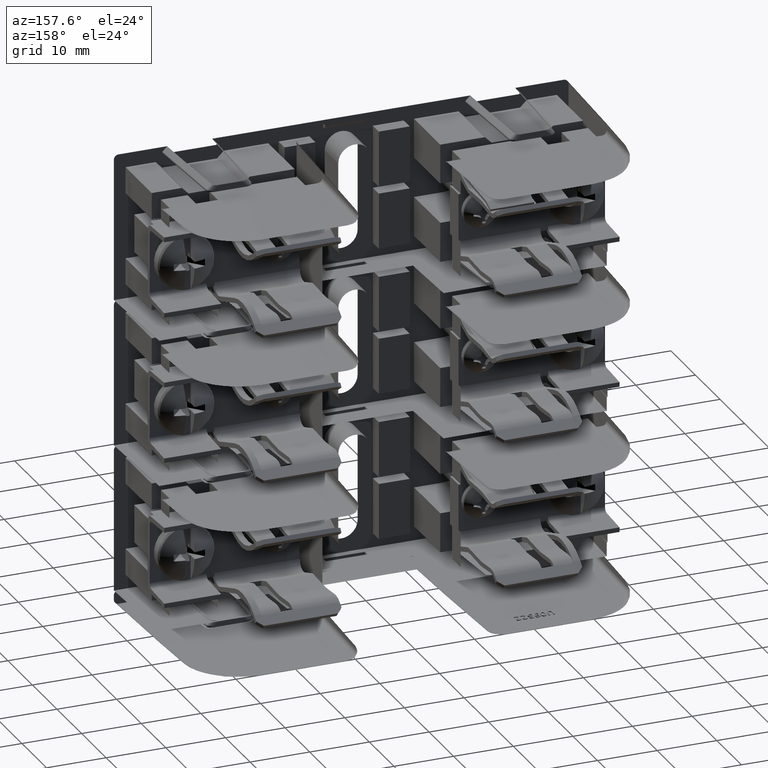
[diagram: clean part render]
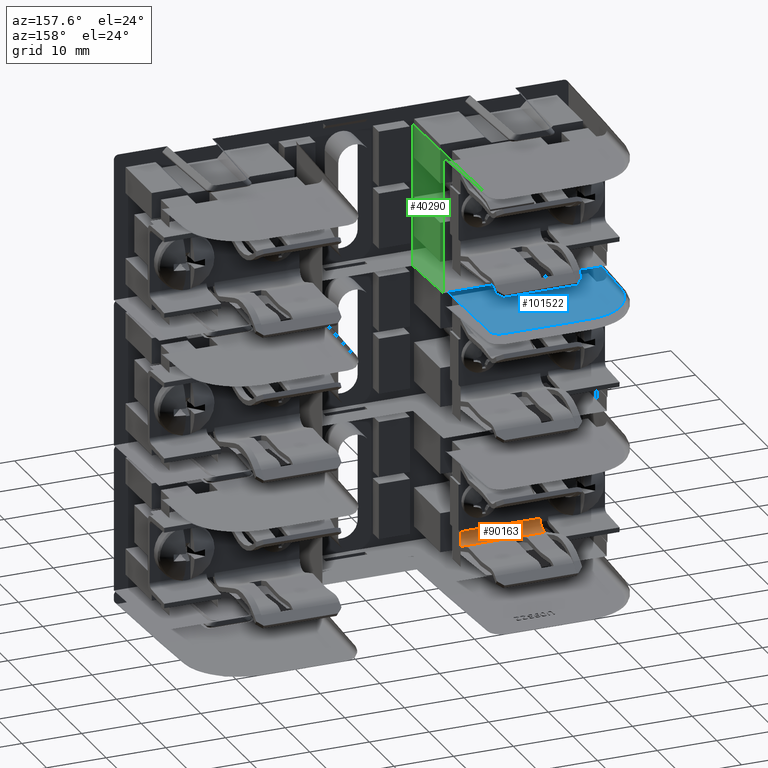
[diagram: same view with three faces highlighted in distinct colors, each labeled with its STEP entity id]
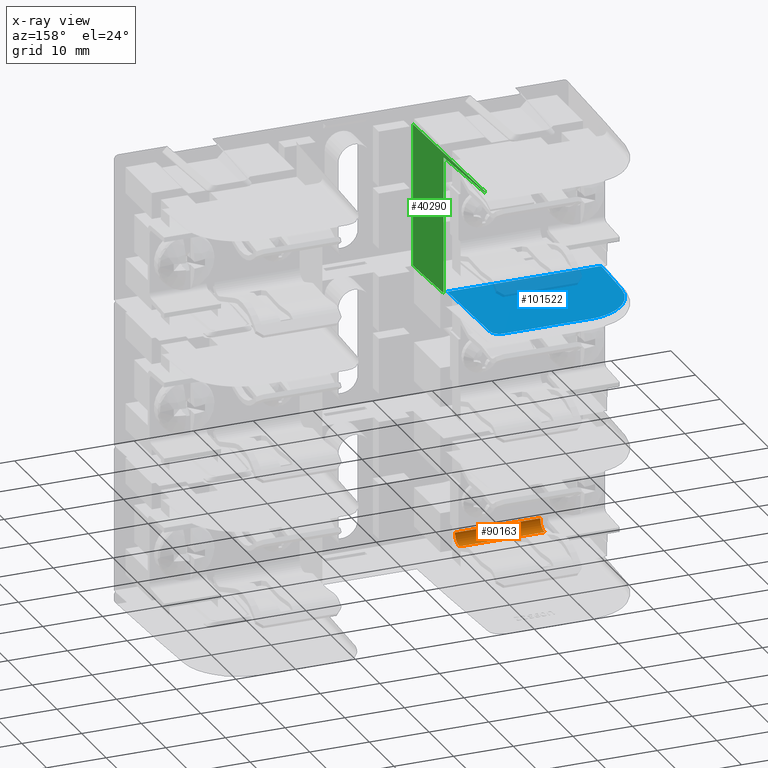
[diagram: x-ray of the same camera — body ghosted, the three highlighted faces saturated]
A machine part, auxiliary view with three faces highlighted in distinct colors.
The next image is the same camera in x-ray (body ghosted, the three faces saturated) — at least one of them is partly hidden behind the body in this view.
Their STEP definitions:

[orange] entity #90163 — the highlighted cylindrical surface (edge-blend (fillet) strip) has radius 1.5748 mm, axis along (-1, 0, -0).
#2271 = ORIENTED_EDGE ( 'NONE', *, *, #41923, .F. ) ;
#8782 = DIRECTION ( 'NONE',  ( -6.609309662090962000E-015, 0.0000000000000000000, 1.000000000000000000 ) ) ;
#12020 = CIRCLE ( 'NONE', #85103, 0.06199999999999997900 ) ;
#27789 = DIRECTION ( 'NONE',  ( 1.000000000000000000, -0.0000000000000000000, 6.982962677686265900E-015 ) ) ;
#31194 = LINE ( 'NONE', #77393, #83687 ) ;
#32605 = DIRECTION ( 'NONE',  ( -1.000000000000000000, -0.0000000000000000000, 0.0000000000000000000 ) ) ;
#32893 = CARTESIAN_POINT ( 'NONE',  ( -1.075499999999995500, 0.6410000000000001300, -0.6373778145455099000 ) ) ;
#40416 = VERTEX_POINT ( 'NONE', #81491 ) ;
#41923 = EDGE_CURVE ( 'NONE', #119208, #117816, #121256, .T. ) ;
#42957 = DIRECTION ( 'NONE',  ( -6.609309662090962000E-015, 0.0000000000000000000, 1.000000000000000000 ) ) ;
#51649 = CARTESIAN_POINT ( 'NONE',  ( -0.5124999999999982900, 0.5790000000000000700, -0.6373778145455059100 ) ) ;
#53444 = DIRECTION ( 'NONE',  ( -6.609309662090962000E-015, 0.0000000000000000000, 1.000000000000000000 ) ) ;
#55268 = CYLINDRICAL_SURFACE ( 'NONE', #116504, 0.06199999999999997900 ) ;
#57588 = EDGE_CURVE ( 'NONE', #117816, #40416, #31194, .T. ) ;
#60891 = CARTESIAN_POINT ( 'NONE',  ( -0.5124999999999969600, 0.5790000000000000700, -0.6373778145455059100 ) ) ;
#61779 = VECTOR ( 'NONE', #32605, 39.37007874015748100 ) ;
#63451 = CARTESIAN_POINT ( 'NONE',  ( -1.075499999999995500, 0.5790000000000000700, -0.6373778145455079000 ) ) ;
#64425 = EDGE_LOOP ( 'NONE', ( #2271, #93536, #69273, #74963 ) ) ;
#68024 = DIRECTION ( 'NONE',  ( -1.000000000000000000, 0.0000000000000000000, -6.982962677686266700E-015 ) ) ;
#69273 = ORIENTED_EDGE ( 'NONE', *, *, #90434, .F. ) ;
#70722 = FACE_OUTER_BOUND ( 'NONE', #64425, .T. ) ;
#72810 = DIRECTION ( 'NONE',  ( -1.000000000000000000, 0.0000000000000000000, -6.982962677686266700E-015 ) ) ;
#74963 = ORIENTED_EDGE ( 'NONE', *, *, #57588, .F. ) ;
#76790 = AXIS2_PLACEMENT_3D ( 'NONE', #32893, #101918, #42957 ) ;
#77393 = CARTESIAN_POINT ( 'NONE',  ( -0.5124999999999950700, 0.6622052488861912600, -0.6956387570342322800 ) ) ;
#81491 = CARTESIAN_POINT ( 'NONE',  ( -0.5124999999999951800, 0.6622052488861912600, -0.6956387570342322800 ) ) ;
#83687 = VECTOR ( 'NONE', #27789, 39.37007874015748100 ) ;
#85103 = AXIS2_PLACEMENT_3D ( 'NONE', #127107, #68024, #8782 ) ;
#90163 = ADVANCED_FACE ( 'NONE', ( #70722 ), #55268, .F. ) ;
#90434 = EDGE_CURVE ( 'NONE', #40416, #122871, #12020, .T. ) ;
#92236 = CARTESIAN_POINT ( 'NONE',  ( -0.5124999999999955100, 0.6410000000000001300, -0.6373778145455059100 ) ) ;
#93536 = ORIENTED_EDGE ( 'NONE', *, *, #116653, .F. ) ;
#101918 = DIRECTION ( 'NONE',  ( 1.000000000000000000, -0.0000000000000000000, 6.982962677686266700E-015 ) ) ;
#106459 = CARTESIAN_POINT ( 'NONE',  ( -1.075499999999995000, 0.6622052488861912600, -0.6956387570342362800 ) ) ;
#114207 = LINE ( 'NONE', #51649, #61779 ) ;
#116504 = AXIS2_PLACEMENT_3D ( 'NONE', #92236, #72810, #53444 ) ;
#116653 = EDGE_CURVE ( 'NONE', #122871, #119208, #114207, .T. ) ;
#117816 = VERTEX_POINT ( 'NONE', #106459 ) ;
#119208 = VERTEX_POINT ( 'NONE', #63451 ) ;
#121256 = CIRCLE ( 'NONE', #76790, 0.06199999999999997900 ) ;
#122871 = VERTEX_POINT ( 'NONE', #60891 ) ;
#127107 = CARTESIAN_POINT ( 'NONE',  ( -0.5124999999999955100, 0.6410000000000001300, -0.6373778145455059100 ) ) ;

[blue] entity #101522 — the highlighted planar face has unit normal (0, -0.0175, -0.9998).
#847 = FACE_OUTER_BOUND ( 'NONE', #7928, .T. ) ;
#2964 = DIRECTION ( 'NONE',  ( 0.03489418781261441300, 0.9992388003036509800, -0.01744177813809427700 ) ) ;
#5791 = CARTESIAN_POINT ( 'NONE',  ( -0.4770370497526416600, 1.329928703366162900, 1.004736530725754300 ) ) ;
#6498 = CARTESIAN_POINT ( 'NONE',  ( -1.426369132407067300, 1.069399307966164600, 1.009284088238170800 ) ) ;
#6976 = CARTESIAN_POINT ( 'NONE',  ( -1.419538821831554800, 1.097143967803480400, 1.008799803399299100 ) ) ;
#7416 = CARTESIAN_POINT ( 'NONE',  ( -1.345570078080138500, 1.228911172557068100, 1.006499798284915300 ) ) ;
#7828 = CARTESIAN_POINT ( 'NONE',  ( -1.215392852275294100, 1.317858444185215200, 1.004947217883458200 ) ) ;
#7928 = EDGE_LOOP ( 'NONE', ( #77928, #42248, #101369, #55200, #37844, #111636, #80241, #46593 ) ) ;
#10580 = LINE ( 'NONE', #52302, #86251 ) ;
#15243 = CARTESIAN_POINT ( 'NONE',  ( -1.433384370331605400, 1.019862342538113000, 1.010148759186064100 ) ) ;
#15645 = EDGE_CURVE ( 'NONE', #30416, #47337, #62520, .T. ) ;
#15726 = EDGE_CURVE ( 'NONE', #115858, #52680, #86348, .T. ) ;
#15784 = CARTESIAN_POINT ( 'NONE',  ( -0.4640484300996439700, 1.316548052078306400, 1.004970090862765900 ) ) ;
#17022 = CARTESIAN_POINT ( 'NONE',  ( -1.409885816706534700, 1.124007694935555300, 1.008330895297994600 ) ) ;
#17425 = CARTESIAN_POINT ( 'NONE',  ( -1.307558408796290800, 1.264414795062130300, 1.005880080248902700 ) ) ;
#17862 = CARTESIAN_POINT ( 'NONE',  ( -1.188477488580055500, 1.327449206474217200, 1.004779810504993000 ) ) ;
#18472 = VECTOR ( 'NONE', #41627, 39.37007874015748100 ) ;
#19310 = VECTOR ( 'NONE', #62482, 39.37007874015748100 ) ;
#21129 = VERTEX_POINT ( 'NONE', #51724 ) ;
#24507 = EDGE_CURVE ( 'NONE', #121687, #115858, #32100, .T. ) ;
#25602 = CARTESIAN_POINT ( 'NONE',  ( -1.432154914113540600, 1.035247390072984200, 1.009880212182419300 ) ) ;
#25713 = CARTESIAN_POINT ( 'NONE',  ( -0.4588552060648084500, 1.307694200358158000, 1.005124635419405700 ) ) ;
#26949 = CARTESIAN_POINT ( 'NONE',  ( -1.407302127785931200, 1.130314764404684300, 1.008220804990904300 ) ) ;
#27372 = CARTESIAN_POINT ( 'NONE',  ( -1.284271361124348800, 1.281418309438405700, 1.005583282801456800 ) ) ;
#27781 = CARTESIAN_POINT ( 'NONE',  ( -1.160741587229853200, 1.334199034903077200, 1.004661991811512500 ) ) ;
#27917 = EDGE_CURVE ( 'NONE', #56815, #109565, #10580, .T. ) ;
#29531 = EDGE_CURVE ( 'NONE', #52680, #21129, #106850, .T. ) ;
#30416 = VERTEX_POINT ( 'NONE', #31481 ) ;
#31481 = CARTESIAN_POINT ( 'NONE',  ( -0.9248675442112800300, 0.6560000000000000300, 1.016500000000000200 ) ) ;
#32100 = LINE ( 'NONE', #92712, #84572 ) ;
#33618 = DIRECTION ( 'NONE',  ( 1.000000000000000000, 0.0000000000000000000, 0.0000000000000000000 ) ) ;
#34510 = CARTESIAN_POINT ( 'NONE',  ( -1.075132455788722500, 0.6560000000000000300, 1.016500000000000200 ) ) ;
#35232 = CARTESIAN_POINT ( 'NONE',  ( -0.5141076240505273500, 1.341541024599556500, 1.004533836904658100 ) ) ;
#35649 = CARTESIAN_POINT ( 'NONE',  ( -0.4574822782563132700, 1.304808690961464200, 1.005175002173276200 ) ) ;
#36198 = VECTOR ( 'NONE', #119859, 39.37007874015748100 ) ;
#36898 = CARTESIAN_POINT ( 'NONE',  ( -1.401775788791940400, 1.143257242557648800, 1.007994893194412000 ) ) ;
#37300 = CARTESIAN_POINT ( 'NONE',  ( -1.276999921885274600, 1.286259363543541500, 1.005498781887730800 ) ) ;
#37735 = CARTESIAN_POINT ( 'NONE',  ( -1.154054850666129700, 1.335518938678185400, 1.004638952805418900 ) ) ;
#37844 = ORIENTED_EDGE ( 'NONE', *, *, #29531, .T. ) ;
#40963 = CARTESIAN_POINT ( 'NONE',  ( 1.500000000000000200, 0.6560000000000000300, 1.016500000000000200 ) ) ;
#41627 = DIRECTION ( 'NONE',  ( 1.000000000000000000, -0.0000000000000000000, 0.0000000000000000000 ) ) ;
#42248 = ORIENTED_EDGE ( 'NONE', *, *, #72038, .T. ) ;
#42829 = CARTESIAN_POINT ( 'NONE',  ( -0.4521453927753435500, 1.281704793395110700, 1.005578282205391800 ) ) ;
#45168 = CARTESIAN_POINT ( 'NONE',  ( -0.4980813038091196400, 1.339491328616767100, 1.004569614481120900 ) ) ;
#45594 = CARTESIAN_POINT ( 'NONE',  ( -0.4524207268191086100, 1.289440495656164700, 1.005443255020159700 ) ) ;
#45617 = LINE ( 'NONE', #111594, #19310 ) ;
#45918 = CARTESIAN_POINT ( 'NONE',  ( -1.433745858199237500, 1.009546451465215900, 1.010328823734534000 ) ) ;
#46593 = ORIENTED_EDGE ( 'NONE', *, *, #100610, .F. ) ;
#46804 = CARTESIAN_POINT ( 'NONE',  ( -1.384391516521215500, 1.175589083102219300, 1.007430538818458300 ) ) ;
#47240 = CARTESIAN_POINT ( 'NONE',  ( -1.250298313294745600, 1.302259530460968800, 1.005219497935324800 ) ) ;
#47337 = VERTEX_POINT ( 'NONE', #34510 ) ;
#47668 = CARTESIAN_POINT ( 'NONE',  ( -1.131085381475616100, 1.339696284668232100, 1.004566036959935200 ) ) ;
#51266 = CARTESIAN_POINT ( 'NONE',  ( -0.5141076240505273500, 1.341541024599556500, 1.004533836904658100 ) ) ;
#51724 = CARTESIAN_POINT ( 'NONE',  ( -0.4302952999153154000, 0.6559999999999957000, 1.016500000000000200 ) ) ;
#52302 = CARTESIAN_POINT ( 'NONE',  ( -1.442504797954785600, 0.7587232341355288900, 1.014706959278528100 ) ) ;
#52680 = VERTEX_POINT ( 'NONE', #42829 ) ;
#55115 = CARTESIAN_POINT ( 'NONE',  ( -0.4935313707526877700, 1.338034987166554200, 1.004595035015692300 ) ) ;
#55200 = ORIENTED_EDGE ( 'NONE', *, *, #15726, .T. ) ;
#55821 = CARTESIAN_POINT ( 'NONE',  ( -1.427898740956051100, 1.061899306718431900, 1.009415001246911200 ) ) ;
#56720 = CARTESIAN_POINT ( 'NONE',  ( -1.376757644826736000, 1.187510890907692600, 1.007222442889151600 ) ) ;
#56815 = VERTEX_POINT ( 'NONE', #80512 ) ;
#57126 = CARTESIAN_POINT ( 'NONE',  ( -1.223333164263494600, 1.314654246426933700, 1.005003147363371800 ) ) ;
#57540 = CARTESIAN_POINT ( 'NONE',  ( -1.089955413704668800, 1.341541024599555800, 1.004533836904658100 ) ) ;
#57849 = CARTESIAN_POINT ( 'NONE',  ( 1.500000000000000200, 0.6560000000000000300, 1.016500000000000200 ) ) ;
#61401 = CARTESIAN_POINT ( 'NONE',  ( 1.500000000000000200, 0.6560000000000000300, 1.016500000000000200 ) ) ;
#62482 = DIRECTION ( 'NONE',  ( 1.000000000000000000, -0.0000000000000000000, 0.0000000000000000000 ) ) ;
#62520 = LINE ( 'NONE', #40963, #36198 ) ;
#65052 = CARTESIAN_POINT ( 'NONE',  ( -0.4839538708496923800, 1.334355222770201800, 1.004659265542150900 ) ) ;
#65793 = CARTESIAN_POINT ( 'NONE',  ( -1.426620498650840600, 1.068210780368704000, 1.009304834064553400 ) ) ;
#66275 = CARTESIAN_POINT ( 'NONE',  ( -1.423759161688232800, 1.081388904031926700, 1.009074809060379800 ) ) ;
#66681 = CARTESIAN_POINT ( 'NONE',  ( -1.360475337552975700, 1.211297565883954000, 1.006807244933014800 ) ) ;
#66800 = B_SPLINE_CURVE_WITH_KNOTS ( 'NONE', 3,
 ( #45918, #15243, #25602, #114916, #55821, #124847, #65793, #6498, #66275, #6976, #76088, #17022, #86021, #26949, #95908, #36898, #105917, #46804, #115815, #56720, #125761, #66681, #7416, #76540, #17425, #86452, #27372, #96306, #37300, #106351, #47240, #116244, #57126, #126199, #67108, #7828, #76957, #17862, #86874, #27781, #96741, #37735, #106745, #47668, #116665, #57540 ),
 .UNSPECIFIED., .F., .F.,
 ( 4, 1, 1, 1, 2, 2, 1, 1, 1, 2, 2, 1, 1, 2, 2, 2, 1, 1, 2, 2, 1, 1, 1, 2, 2, 1, 1, 1, 2, 2, 4 ),
 ( 0.0000000000000000000, 0.06249999999999909800, 0.09374999999999834900, 0.1093749999999983800, 0.1171874999999984000, 0.1249999999999984200, 0.1874999999999992800, 0.2187499999999999400, 0.2343750000000000000, 0.2421874999999996700, 0.2499999999999993300, 0.3124999999999955600, 0.3437499999999940000, 0.3593749999999928400, 0.3749999999999916700, 0.4999999999999881800, 0.5624999999999859000, 0.5937499999999842300, 0.6093749999999833500, 0.6249999999999824600, 0.6874999999999836800, 0.7187499999999842300, 0.7343749999999845700, 0.7421874999999850100, 0.7499999999999854600, 0.8124999999999923400, 0.8437499999999958900, 0.8593749999999977800, 0.8671874999999982200, 0.8749999999999986700, 1.000000000000000000 ),
 .UNSPECIFIED. ) ;
#67108 = CARTESIAN_POINT ( 'NONE',  ( -1.216765310734134700, 1.317317834801433600, 1.004956654255353200 ) ) ;
#67426 = PLANE ( 'NONE',  #110857 ) ;
#67830 = DIRECTION ( 'NONE',  ( 0.0000000000000000000, 0.9998476951563912700, -0.01745240643728331700 ) ) ;
#69394 = CARTESIAN_POINT ( 'NONE',  ( -0.4521453927753435500, 1.281704793395110700, 1.005578282205391800 ) ) ;
#70204 = DIRECTION ( 'NONE',  ( 0.03489418781260773800, -0.9992388003036512000, 0.01744177813809418000 ) ) ;
#72038 = EDGE_CURVE ( 'NONE', #109565, #121687, #66800, .T. ) ;
#72420 = CARTESIAN_POINT ( 'NONE',  ( -1.089955413704668800, 1.341541024599555800, 1.004533836904658100 ) ) ;
#74918 = CARTESIAN_POINT ( 'NONE',  ( -0.4680396827467828700, 1.321245786647746300, 1.004888091600840700 ) ) ;
#76088 = CARTESIAN_POINT ( 'NONE',  ( -1.413319428926858500, 1.115120512983734500, 1.008486021635992500 ) ) ;
#76540 = CARTESIAN_POINT ( 'NONE',  ( -1.320591800673777800, 1.253035287595543300, 1.006078710290582800 ) ) ;
#76957 = CARTESIAN_POINT ( 'NONE',  ( -1.203949934830820000, 1.322288126443234200, 1.004869897492033100 ) ) ;
#77928 = ORIENTED_EDGE ( 'NONE', *, *, #27917, .T. ) ;
#80241 = ORIENTED_EDGE ( 'NONE', *, *, #15645, .T. ) ;
#80512 = CARTESIAN_POINT ( 'NONE',  ( -1.446082525837534500, 0.6559999999999797100, 1.016499999041639000 ) ) ;
#84572 = VECTOR ( 'NONE', #33618, 39.37007874015748100 ) ;
#84825 = CARTESIAN_POINT ( 'NONE',  ( -0.4602799726756141600, 1.310443878379388100, 1.005076639611013800 ) ) ;
#86021 = CARTESIAN_POINT ( 'NONE',  ( -1.408344858090401000, 1.127794824920984600, 1.008264790698207600 ) ) ;
#86234 = CARTESIAN_POINT ( 'NONE',  ( -1.433745858199237500, 1.009546451465215900, 1.010328823734534000 ) ) ;
#86251 = VECTOR ( 'NONE', #2964, 39.37007874015747400 ) ;
#86348 = B_SPLINE_CURVE_WITH_KNOTS ( 'NONE', 3,
 ( #35232, #94284, #104284, #45168, #114185, #55115, #124106, #65052, #5791, #74918, #15784, #84825, #25713, #94708, #35649, #104714, #45594, #114620 ),
 .UNSPECIFIED., .F., .F.,
 ( 4, 1, 1, 2, 2, 2, 1, 1, 2, 2, 4 ),
 ( 0.0000000000000000000, 0.1250000000000017200, 0.1875000000000006700, 0.2187500000000024100, 0.2500000000000042200, 0.5000000000000126600, 0.6250000000000169900, 0.6875000000000196500, 0.7187500000000215400, 0.7500000000000234300, 1.000000000000000000 ),
 .UNSPECIFIED. ) ;
#86452 = CARTESIAN_POINT ( 'NONE',  ( -1.291400341884186600, 1.276496424514344000, 1.005669194622375700 ) ) ;
#86874 = CARTESIAN_POINT ( 'NONE',  ( -1.170049661052431800, 1.332166431295873200, 1.004697471039449600 ) ) ;
#92712 = CARTESIAN_POINT ( 'NONE',  ( 1.500000000000000200, 1.341541024599555600, 1.004533836904658100 ) ) ;
#94284 = CARTESIAN_POINT ( 'NONE',  ( -0.5102447257015305700, 1.341538432464866500, 1.004533882150537400 ) ) ;
#94708 = CARTESIAN_POINT ( 'NONE',  ( -0.4579476475622539800, 1.305831391993151700, 1.005157150860366300 ) ) ;
#95908 = CARTESIAN_POINT ( 'NONE',  ( -1.406793819622011800, 1.131523763199862000, 1.008199701838436300 ) ) ;
#96306 = CARTESIAN_POINT ( 'NONE',  ( -1.279473352853264000, 1.284642686883392400, 1.005527001083802000 ) ) ;
#96741 = CARTESIAN_POINT ( 'NONE',  ( -1.156732235579012400, 1.335000291705389100, 1.004648005822004000 ) ) ;
#97154 = LINE ( 'NONE', #61401, #18472 ) ;
#100610 = EDGE_CURVE ( 'NONE', #56815, #47337, #97154, .T. ) ;
#101369 = ORIENTED_EDGE ( 'NONE', *, *, #24507, .T. ) ;
#101522 = ADVANCED_FACE ( 'NONE', ( #847 ), #67426, .T. ) ;
#103754 = VECTOR ( 'NONE', #70204, 39.37007874015748100 ) ;
#104284 = CARTESIAN_POINT ( 'NONE',  ( -0.5045502073887150300, 1.341014030370826200, 1.004543035623137500 ) ) ;
#104714 = CARTESIAN_POINT ( 'NONE',  ( -0.4540734351995517900, 1.296846914225082700, 1.005313975503153700 ) ) ;
#105917 = CARTESIAN_POINT ( 'NONE',  ( -1.394347786015542900, 1.158502338484306300, 1.007728789055175600 ) ) ;
#106351 = CARTESIAN_POINT ( 'NONE',  ( -1.265036877135858700, 1.293871273684826100, 1.005365915501987000 ) ) ;
#106745 = CARTESIAN_POINT ( 'NONE',  ( -1.152638574944711200, 1.335784175222843900, 1.004634323084310700 ) ) ;
#106850 = LINE ( 'NONE', #69394, #103754 ) ;
#109565 = VERTEX_POINT ( 'NONE', #86234 ) ;
#110857 = AXIS2_PLACEMENT_3D ( 'NONE', #57849, #126916, #67830 ) ;
#111594 = CARTESIAN_POINT ( 'NONE',  ( 1.500000000000000200, 0.6560000000000000300, 1.016500000000000200 ) ) ;
#111636 = ORIENTED_EDGE ( 'NONE', *, *, #125013, .F. ) ;
#114185 = CARTESIAN_POINT ( 'NONE',  ( -0.4953463525147264700, 1.338643549441239900, 1.004584412521674500 ) ) ;
#114620 = CARTESIAN_POINT ( 'NONE',  ( -0.4521453927753435500, 1.281704793395110700, 1.005578282205391800 ) ) ;
#114916 = CARTESIAN_POINT ( 'NONE',  ( -1.429517905796726900, 1.053041231316671500, 1.009569619528188000 ) ) ;
#115815 = CARTESIAN_POINT ( 'NONE',  ( -1.379848058254676400, 1.182762144946356600, 1.007305332558234600 ) ) ;
#115858 = VERTEX_POINT ( 'NONE', #51266 ) ;
#116244 = CARTESIAN_POINT ( 'NONE',  ( -1.232433229398607100, 1.310740268094686900, 1.005071466109288800 ) ) ;
#116665 = CARTESIAN_POINT ( 'NONE',  ( -1.110613606032251300, 1.341538526432128000, 1.004533880510332800 ) ) ;
#119859 = DIRECTION ( 'NONE',  ( -1.000000000000000000, -0.0000000000000000000, -0.0000000000000000000 ) ) ;
#121687 = VERTEX_POINT ( 'NONE', #72420 ) ;
#124106 = CARTESIAN_POINT ( 'NONE',  ( -0.4927007422410199500, 1.337737127891014000, 1.004600234168686400 ) ) ;
#124847 = CARTESIAN_POINT ( 'NONE',  ( -1.427140385878132400, 1.065687300772026000, 1.009348881564758400 ) ) ;
#125013 = EDGE_CURVE ( 'NONE', #30416, #21129, #45617, .T. ) ;
#125761 = CARTESIAN_POINT ( 'NONE',  ( -1.375212536019730300, 1.189823709977264600, 1.007182072482125000 ) ) ;
#126199 = CARTESIAN_POINT ( 'NONE',  ( -1.219397238522651300, 1.316261724894050900, 1.004975088722357600 ) ) ;
#126916 = DIRECTION ( 'NONE',  ( 0.0000000000000000000, -0.01745240643728331700, -0.9998476951563912700 ) ) ;

[green] entity #40290 — the highlighted planar face has unit normal (-0.9994, -0.0349, 0).
#13859 = LINE ( 'NONE', #72907, #89529 ) ;
#14821 = VECTOR ( 'NONE', #35200, 39.37007874015748100 ) ;
#15402 = CARTESIAN_POINT ( 'NONE',  ( -0.3840000000000000600, 0.2179999999999996900, 1.963159480631606400 ) ) ;
#20633 = DIRECTION ( 'NONE',  ( -0.9993908270190959800, -0.03489949670249395400, 0.0000000000000000000 ) ) ;
#22846 = VERTEX_POINT ( 'NONE', #85887 ) ;
#23953 = VERTEX_POINT ( 'NONE', #99288 ) ;
#26153 = CARTESIAN_POINT ( 'NONE',  ( -0.3997841878102668700, 0.6699999999999999300, 1.018500000000000200 ) ) ;
#26263 = LINE ( 'NONE', #71896, #49458 ) ;
#28537 = EDGE_CURVE ( 'NONE', #23953, #101028, #64298, .T. ) ;
#35060 = CARTESIAN_POINT ( 'NONE',  ( -0.4211642771377514000, 1.282245653193331700, 1.815000000000000200 ) ) ;
#35200 = DIRECTION ( 'NONE',  ( 0.0000000000000000000, 0.0000000000000000000, 1.000000000000000000 ) ) ;
#35300 = VERTEX_POINT ( 'NONE', #56216 ) ;
#40290 = ADVANCED_FACE ( 'NONE', ( #87808 ), #108262, .T. ) ;
#44060 = DIRECTION ( 'NONE',  ( 0.03489418781260730800, -0.9992388003036512000, -0.01744177813809410000 ) ) ;
#46396 = LINE ( 'NONE', #35060, #95711 ) ;
#46613 = ORIENTED_EDGE ( 'NONE', *, *, #105738, .T. ) ;
#46719 = AXIS2_PLACEMENT_3D ( 'NONE', #79771, #20633, #89663 ) ;
#48981 = CARTESIAN_POINT ( 'NONE',  ( -0.3840000000000001700, 0.2179999999999996700, 1.963159480631606400 ) ) ;
#49458 = VECTOR ( 'NONE', #121977, 39.37007874015748100 ) ;
#51780 = CARTESIAN_POINT ( 'NONE',  ( -0.3997841878102669800, 0.6699999999999999300, 1.924730208715948600 ) ) ;
#53243 = VERTEX_POINT ( 'NONE', #26153 ) ;
#55591 = CARTESIAN_POINT ( 'NONE',  ( -0.3840000000000000600, 0.2179999999999996400, 1.018500000000000200 ) ) ;
#56158 = ORIENTED_EDGE ( 'NONE', *, *, #89666, .T. ) ;
#56216 = CARTESIAN_POINT ( 'NONE',  ( -0.4211642771377514500, 1.282245653193331700, 1.944583003655543600 ) ) ;
#58867 = EDGE_CURVE ( 'NONE', #72950, #53243, #26263, .T. ) ;
#61057 = EDGE_CURVE ( 'NONE', #23953, #53243, #78136, .T. ) ;
#64298 = LINE ( 'NONE', #124513, #14821 ) ;
#71896 = CARTESIAN_POINT ( 'NONE',  ( -0.3997841878102668700, 0.6699999999999999300, 1.018500000000000200 ) ) ;
#72907 = CARTESIAN_POINT ( 'NONE',  ( -0.4211642771377514000, 1.282245653193331700, 1.935416996344456500 ) ) ;
#72950 = VERTEX_POINT ( 'NONE', #51780 ) ;
#73968 = ORIENTED_EDGE ( 'NONE', *, *, #77994, .T. ) ;
#77994 = EDGE_CURVE ( 'NONE', #35300, #22846, #46396, .T. ) ;
#78136 = LINE ( 'NONE', #55591, #124463 ) ;
#79771 = CARTESIAN_POINT ( 'NONE',  ( -0.4242985679934688200, 1.372000000000000100, 1.815000000000000200 ) ) ;
#80745 = ORIENTED_EDGE ( 'NONE', *, *, #28537, .T. ) ;
#84399 = LINE ( 'NONE', #15402, #110661 ) ;
#85887 = CARTESIAN_POINT ( 'NONE',  ( -0.4211642771377514500, 1.282245653193331700, 1.935416996344456500 ) ) ;
#87808 = FACE_OUTER_BOUND ( 'NONE', #127575, .T. ) ;
#89529 = VECTOR ( 'NONE', #44060, 39.37007874015748100 ) ;
#89663 = DIRECTION ( 'NONE',  ( 0.03489949670249395400, -0.9993908270190959800, 0.0000000000000000000 ) ) ;
#89666 = EDGE_CURVE ( 'NONE', #22846, #72950, #13859, .T. ) ;
#89848 = ORIENTED_EDGE ( 'NONE', *, *, #61057, .F. ) ;
#94322 = DIRECTION ( 'NONE',  ( -0.03489418781260730100, 0.9992388003036512000, -0.01744177813809427400 ) ) ;
#95711 = VECTOR ( 'NONE', #104104, 39.37007874015748100 ) ;
#99288 = CARTESIAN_POINT ( 'NONE',  ( -0.3840000000000000600, 0.2179999999999996700, 1.018500000000000200 ) ) ;
#101028 = VERTEX_POINT ( 'NONE', #48981 ) ;
#104104 = DIRECTION ( 'NONE',  ( -0.0000000000000000000, -0.0000000000000000000, -1.000000000000000000 ) ) ;
#105738 = EDGE_CURVE ( 'NONE', #101028, #35300, #84399, .T. ) ;
#106063 = DIRECTION ( 'NONE',  ( -0.03489949670249391900, 0.9993908270190959800, 0.0000000000000000000 ) ) ;
#108262 = PLANE ( 'NONE',  #46719 ) ;
#110661 = VECTOR ( 'NONE', #94322, 39.37007874015748100 ) ;
#115123 = ORIENTED_EDGE ( 'NONE', *, *, #58867, .T. ) ;
#121977 = DIRECTION ( 'NONE',  ( -0.0000000000000000000, -0.0000000000000000000, -1.000000000000000000 ) ) ;
#124463 = VECTOR ( 'NONE', #106063, 39.37007874015748100 ) ;
#124513 = CARTESIAN_POINT ( 'NONE',  ( -0.3840000000000000600, 0.2179999999999996900, 1.815000000000000200 ) ) ;
#127575 = EDGE_LOOP ( 'NONE', ( #56158, #115123, #89848, #80745, #46613, #73968 ) ) ;